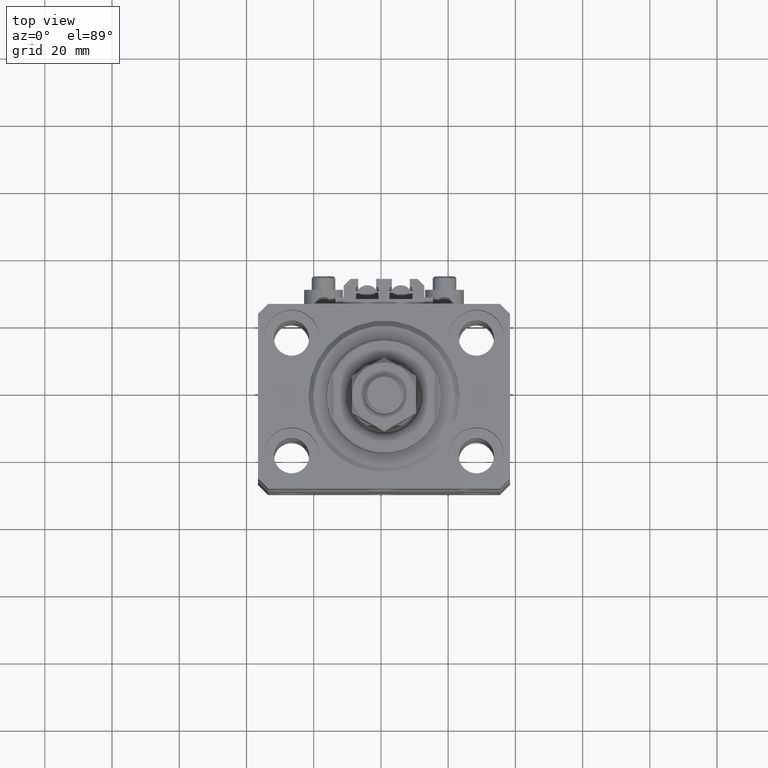
[diagram: clean part render]
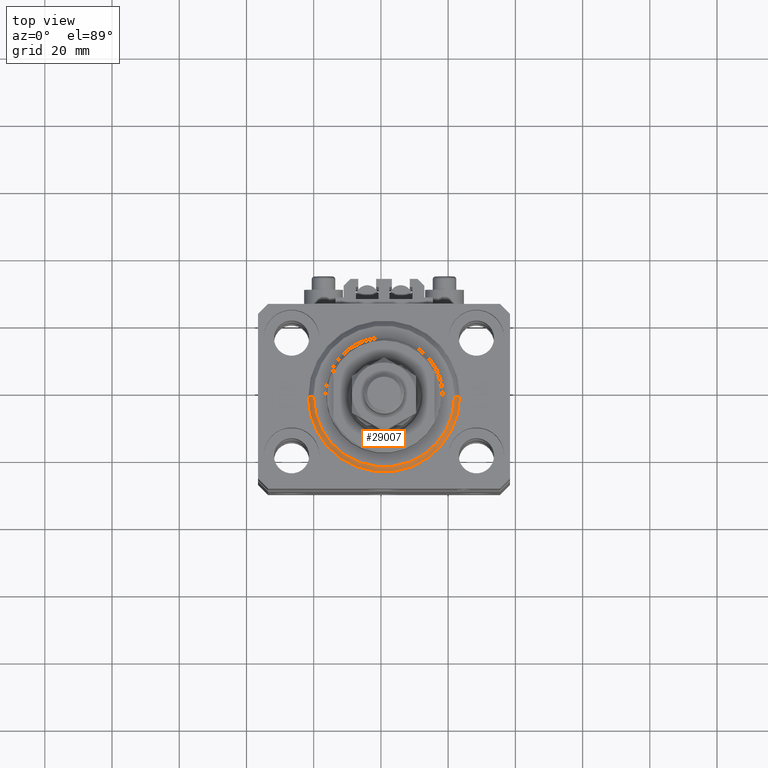
[diagram: same view with one face highlighted and labeled with its STEP entity id]
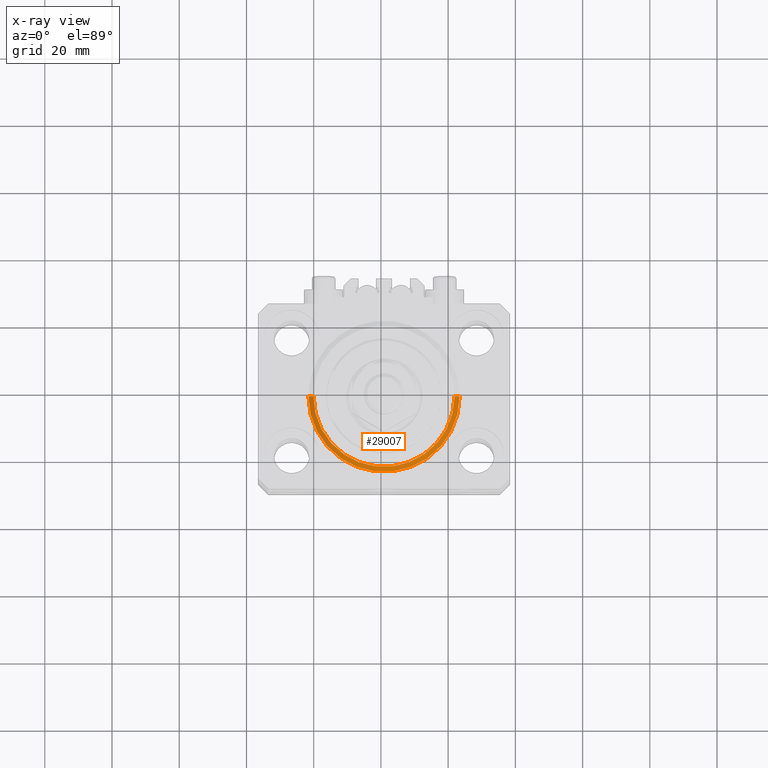
[diagram: x-ray of the same camera — body ghosted, the highlighted face saturated]
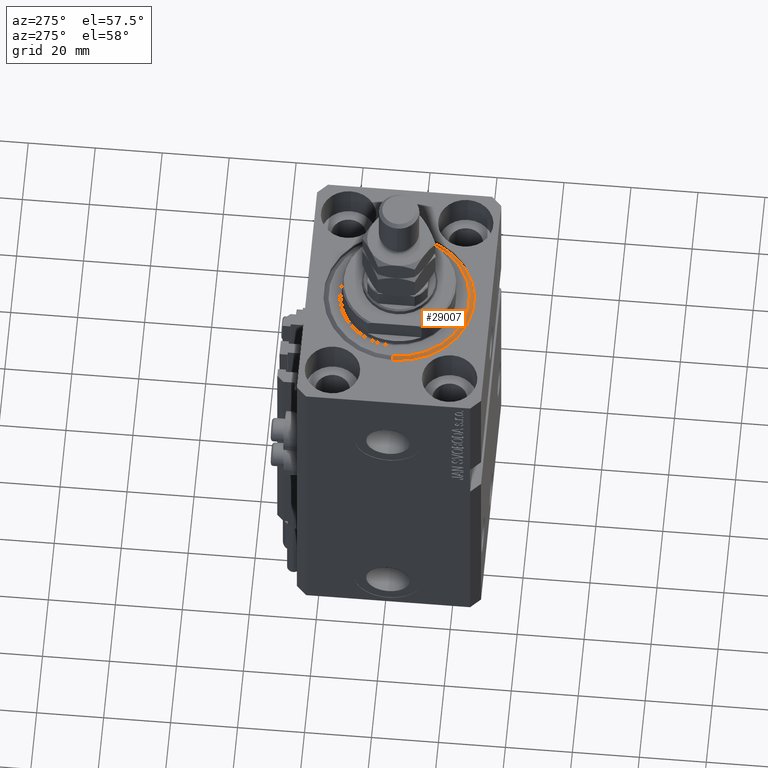
[diagram: same view with one face highlighted and labeled with its STEP entity id]
A machine part, top view. The second image highlights one B-rep face of the part: STEP entity #29007.
The next image is the same camera in x-ray: the body ghosted, the highlighted face saturated — about 0% of this face is hidden behind the body in this view.
A second angle (auxiliary view) of the same face is appended — the face is thin or edge-on in the first view.
In plain terms, the highlighted conical surface has half-angle 45 deg.
Its self-contained STEP definition (entity closure, byte-faithful):
#1937 = ORIENTED_EDGE ( 'NONE', *, *, #49901, .F. ) ;
#4680 = DIRECTION ( 'NONE',  ( 0.7071067811865500152, 0.000000000000000000, 0.7071067811865451302 ) ) ;
#5695 = AXIS2_PLACEMENT_3D ( 'NONE', #37199, #49415, #25740 ) ;
#6345 = DIRECTION ( 'NONE',  ( 1.000000000000000000, 0.000000000000000000, 0.000000000000000000 ) ) ;
#11325 = CARTESIAN_POINT ( 'NONE',  ( -20.99999999999998934, 2.663606788145492628E-15, 0.000000000000000000 ) ) ;
#12595 = CARTESIAN_POINT ( 'NONE',  ( 0.000000000000000000, 0.000000000000000000, 1.500000000000001332 ) ) ;
#12793 = LINE ( 'NONE', #44303, #42064 ) ;
#14413 = AXIS2_PLACEMENT_3D ( 'NONE', #12595, #44345, #20957 ) ;
#14697 = ORIENTED_EDGE ( 'NONE', *, *, #38055, .F. ) ;
#16420 = VERTEX_POINT ( 'NONE', #11325 ) ;
#17099 = CARTESIAN_POINT ( 'NONE',  ( -22.50000000000000355, 2.755455298081545172E-15, 1.500000000000001332 ) ) ;
#19005 = AXIS2_PLACEMENT_3D ( 'NONE', #48827, #29479, #6345 ) ;
#20230 = FACE_OUTER_BOUND ( 'NONE', #30986, .T. ) ;
#20957 = DIRECTION ( 'NONE',  ( 1.000000000000000000, 0.000000000000000000, 0.000000000000000000 ) ) ;
#21671 = EDGE_CURVE ( 'NONE', #25328, #38574, #12793, .T. ) ;
#22319 = CARTESIAN_POINT ( 'NONE',  ( 22.50000000000000355, 2.755455298081545172E-15, 1.500000000000001332 ) ) ;
#24834 = CARTESIAN_POINT ( 'NONE',  ( -22.50000000000000355, 0.000000000000000000, 1.500000000000001332 ) ) ;
#24957 = LINE ( 'NONE', #17099, #31167 ) ;
#25328 = VERTEX_POINT ( 'NONE', #41111 ) ;
#25740 = DIRECTION ( 'NONE',  ( 1.000000000000000000, 0.000000000000000000, 0.000000000000000000 ) ) ;
#28782 = DIRECTION ( 'NONE',  ( -0.7071067811865500152, 8.659560562354963673E-17, 0.7071067811865451302 ) ) ;
#28942 = ORIENTED_EDGE ( 'NONE', *, *, #48610, .F. ) ;
#29007 = ADVANCED_FACE ( 'NONE', ( #20230 ), #33085, .T. ) ;
#29085 = ORIENTED_EDGE ( 'NONE', *, *, #21671, .T. ) ;
#29479 = DIRECTION ( 'NONE',  ( -0.000000000000000000, -0.000000000000000000, -1.000000000000000000 ) ) ;
#30356 = CIRCLE ( 'NONE', #19005, 20.99999999999998934 ) ;
#30986 = EDGE_LOOP ( 'NONE', ( #28942, #1937, #29085, #14697 ) ) ;
#31167 = VECTOR ( 'NONE', #28782, 1000.000000000000114 ) ;
#33085 = CONICAL_SURFACE ( 'NONE', #14413, 22.50000000000000355, 0.7853981633974517207 ) ;
#36543 = CIRCLE ( 'NONE', #5695, 22.50000000000000355 ) ;
#37199 = CARTESIAN_POINT ( 'NONE',  ( 0.000000000000000000, 0.000000000000000000, 1.500000000000001332 ) ) ;
#38055 = EDGE_CURVE ( 'NONE', #39758, #38574, #36543, .T. ) ;
#38574 = VERTEX_POINT ( 'NONE', #22319 ) ;
#39758 = VERTEX_POINT ( 'NONE', #24834 ) ;
#41111 = CARTESIAN_POINT ( 'NONE',  ( 20.99999999999998934, 0.000000000000000000, 0.000000000000000000 ) ) ;
#42064 = VECTOR ( 'NONE', #4680, 1000.000000000000114 ) ;
#44303 = CARTESIAN_POINT ( 'NONE',  ( 22.50000000000000355, 0.000000000000000000, 1.500000000000001332 ) ) ;
#44345 = DIRECTION ( 'NONE',  ( -0.000000000000000000, -0.000000000000000000, 1.000000000000000000 ) ) ;
#48610 = EDGE_CURVE ( 'NONE', #16420, #39758, #24957, .T. ) ;
#48827 = CARTESIAN_POINT ( 'NONE',  ( 0.000000000000000000, 0.000000000000000000, 0.000000000000000000 ) ) ;
#49415 = DIRECTION ( 'NONE',  ( -0.000000000000000000, -0.000000000000000000, 1.000000000000000000 ) ) ;
#49901 = EDGE_CURVE ( 'NONE', #25328, #16420, #30356, .T. ) ;